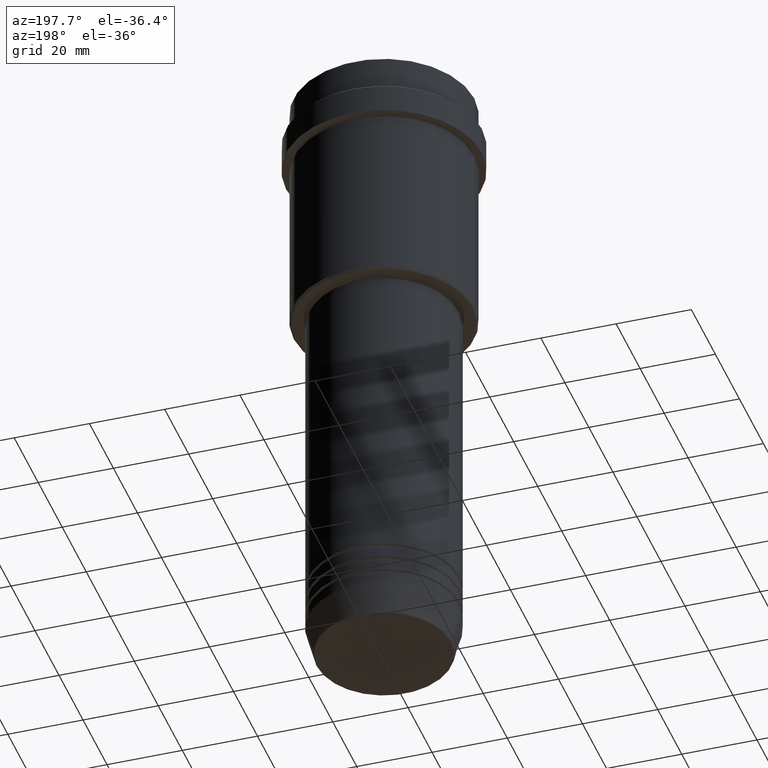
[diagram: clean part render]
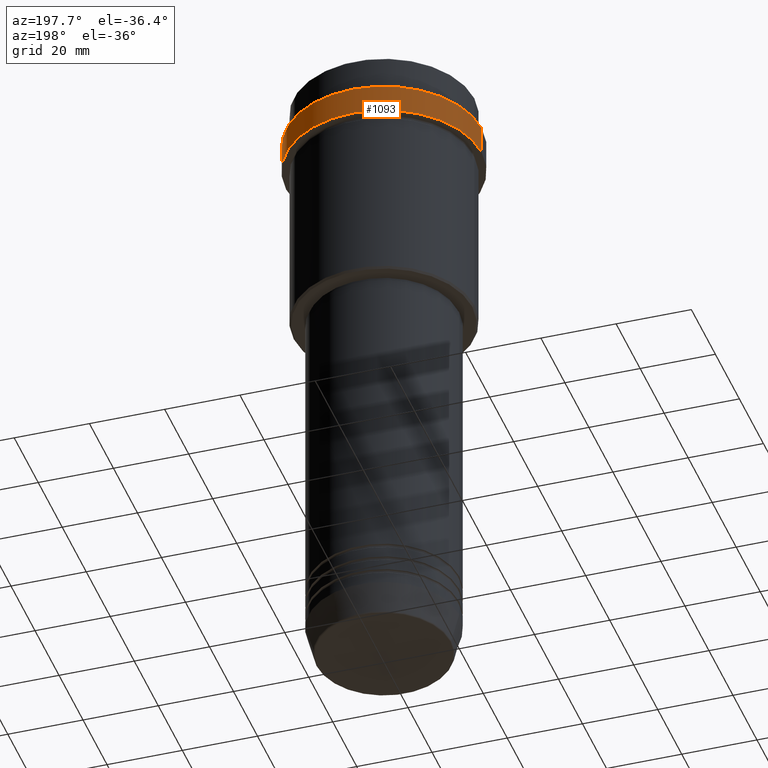
[diagram: same view with one face highlighted and labeled with its STEP entity id]
A machine part, auxiliary view. The second image highlights one B-rep face of the part: STEP entity #1093.
In plain terms, the highlighted cylindrical surface (partial cylindrical patch) has radius 26 mm, axis along (-0, -0, 1).
Its self-contained STEP definition (entity closure, byte-faithful):
#21 = ORIENTED_EDGE ( 'NONE', *, *, #555, .T. ) ;
#73 = CARTESIAN_POINT ( 'NONE',  ( -25.99999999999997868, 3.184081677783115430E-15, -18.00000000000000355 ) ) ;
#94 = EDGE_CURVE ( 'NONE', #1099, #701, #718, .T. ) ;
#105 = CYLINDRICAL_SURFACE ( 'NONE', #873, 25.99999999999997868 ) ;
#111 = DIRECTION ( 'NONE',  ( 1.000000000000000000, 0.000000000000000000, 0.000000000000000000 ) ) ;
#124 = EDGE_CURVE ( 'NONE', #1099, #447, #131, .T. ) ;
#131 = CIRCLE ( 'NONE', #475, 25.99999999999997868 ) ;
#300 = CARTESIAN_POINT ( 'NONE',  ( 0.000000000000000000, 0.000000000000000000, -10.49999999999999822 ) ) ;
#301 = FACE_OUTER_BOUND ( 'NONE', #816, .T. ) ;
#321 = CARTESIAN_POINT ( 'NONE',  ( 0.000000000000000000, 0.000000000000000000, 0.000000000000000000 ) ) ;
#390 = CARTESIAN_POINT ( 'NONE',  ( 0.000000000000000000, 0.000000000000000000, -18.00000000000000355 ) ) ;
#447 = VERTEX_POINT ( 'NONE', #73 ) ;
#475 = AXIS2_PLACEMENT_3D ( 'NONE', #390, #1269, #824 ) ;
#497 = CARTESIAN_POINT ( 'NONE',  ( -25.99999999999997868, 3.184081677783115430E-15, 0.000000000000000000 ) ) ;
#515 = CARTESIAN_POINT ( 'NONE',  ( 25.99999999999997868, 0.000000000000000000, 0.000000000000000000 ) ) ;
#531 = DIRECTION ( 'NONE',  ( -0.000000000000000000, -0.000000000000000000, 1.000000000000000000 ) ) ;
#555 = EDGE_CURVE ( 'NONE', #447, #978, #1060, .T. ) ;
#626 = ORIENTED_EDGE ( 'NONE', *, *, #94, .F. ) ;
#651 = DIRECTION ( 'NONE',  ( 0.000000000000000000, 0.000000000000000000, -1.000000000000000000 ) ) ;
#674 = EDGE_CURVE ( 'NONE', #978, #701, #947, .T. ) ;
#701 = VERTEX_POINT ( 'NONE', #1091 ) ;
#718 = LINE ( 'NONE', #515, #1149 ) ;
#804 = CARTESIAN_POINT ( 'NONE',  ( 25.99999999999997868, 0.000000000000000000, -18.00000000000000355 ) ) ;
#816 = EDGE_LOOP ( 'NONE', ( #1236, #21, #1002, #626 ) ) ;
#824 = DIRECTION ( 'NONE',  ( 1.000000000000000000, 0.000000000000000000, 0.000000000000000000 ) ) ;
#873 = AXIS2_PLACEMENT_3D ( 'NONE', #321, #531, #111 ) ;
#947 = CIRCLE ( 'NONE', #1129, 25.99999999999997868 ) ;
#960 = DIRECTION ( 'NONE',  ( -0.000000000000000000, -0.000000000000000000, 1.000000000000000000 ) ) ;
#978 = VERTEX_POINT ( 'NONE', #1192 ) ;
#1002 = ORIENTED_EDGE ( 'NONE', *, *, #674, .T. ) ;
#1060 = LINE ( 'NONE', #497, #1103 ) ;
#1091 = CARTESIAN_POINT ( 'NONE',  ( 25.99999999999997868, 0.000000000000000000, -10.49999999999999822 ) ) ;
#1093 = ADVANCED_FACE ( 'NONE', ( #301 ), #105, .T. ) ;
#1099 = VERTEX_POINT ( 'NONE', #804 ) ;
#1103 = VECTOR ( 'NONE', #1389, 1000.000000000000000 ) ;
#1129 = AXIS2_PLACEMENT_3D ( 'NONE', #300, #651, #1417 ) ;
#1149 = VECTOR ( 'NONE', #960, 1000.000000000000000 ) ;
#1192 = CARTESIAN_POINT ( 'NONE',  ( -25.99999999999997868, 3.184081677783115430E-15, -10.49999999999999822 ) ) ;
#1236 = ORIENTED_EDGE ( 'NONE', *, *, #124, .T. ) ;
#1269 = DIRECTION ( 'NONE',  ( -0.000000000000000000, -0.000000000000000000, 1.000000000000000000 ) ) ;
#1389 = DIRECTION ( 'NONE',  ( -0.000000000000000000, -0.000000000000000000, 1.000000000000000000 ) ) ;
#1417 = DIRECTION ( 'NONE',  ( 1.000000000000000000, 0.000000000000000000, 0.000000000000000000 ) ) ;